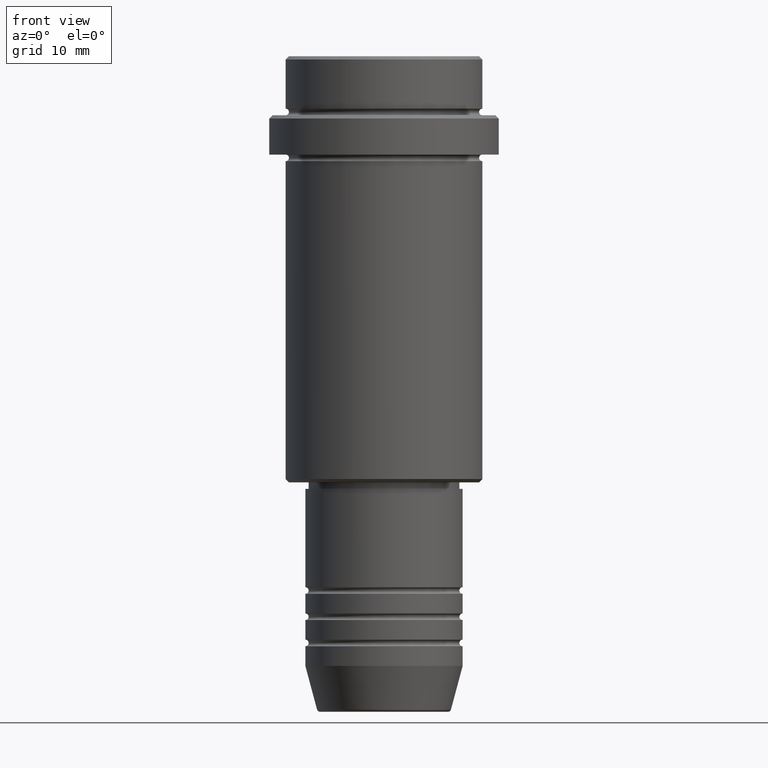
[diagram: clean part render]
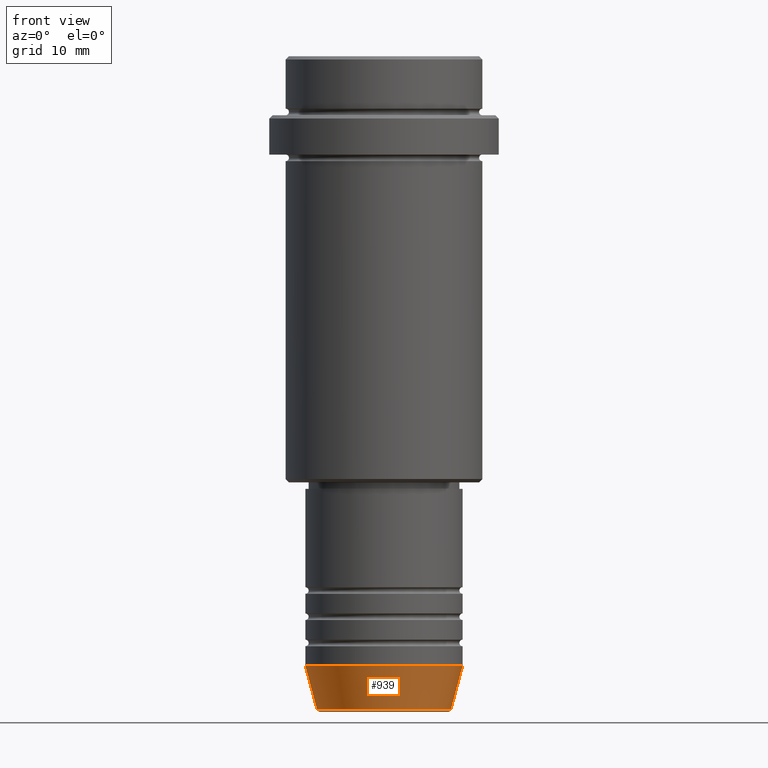
[diagram: same view with one face highlighted and labeled with its STEP entity id]
A machine part, front view. The second image highlights one B-rep face of the part: STEP entity #939.
In plain terms, the highlighted conical surface has half-angle 15 deg.
Its self-contained STEP definition (entity closure, byte-faithful):
#12 = ORIENTED_EDGE ( 'NONE', *, *, #509, .T. ) ;
#16 = CARTESIAN_POINT ( 'NONE',  ( 0.000000000000000000, 0.000000000000000000, -93.00000000000000000 ) ) ;
#82 = EDGE_CURVE ( 'NONE', #436, #792, #1010, .T. ) ;
#92 = CIRCLE ( 'NONE', #840, 10.22365507213718949 ) ;
#132 = VERTEX_POINT ( 'NONE', #1367 ) ;
#138 = DIRECTION ( 'NONE',  ( -0.000000000000000000, -0.000000000000000000, 1.000000000000000000 ) ) ;
#202 = ORIENTED_EDGE ( 'NONE', *, *, #1111, .F. ) ;
#219 = ORIENTED_EDGE ( 'NONE', *, *, #1361, .F. ) ;
#337 = EDGE_LOOP ( 'NONE', ( #202, #12, #963, #219 ) ) ;
#351 = CIRCLE ( 'NONE', #1270, 12.00000000000000000 ) ;
#436 = VERTEX_POINT ( 'NONE', #811 ) ;
#453 = CARTESIAN_POINT ( 'NONE',  ( 12.00000000000000000, 0.000000000000000000, -93.00000000000000000 ) ) ;
#509 = EDGE_CURVE ( 'NONE', #132, #436, #92, .T. ) ;
#545 = DIRECTION ( 'NONE',  ( -0.2588190451025213501, 3.169619151431772337E-17, 0.9659258262890680902 ) ) ;
#553 = VERTEX_POINT ( 'NONE', #1008 ) ;
#589 = DIRECTION ( 'NONE',  ( 1.000000000000000000, 0.000000000000000000, 0.000000000000000000 ) ) ;
#679 = CONICAL_SURFACE ( 'NONE', #1293, 12.00000000000000000, 0.2617993877991500740 ) ;
#689 = DIRECTION ( 'NONE',  ( 1.000000000000000000, 0.000000000000000000, 0.000000000000000000 ) ) ;
#767 = LINE ( 'NONE', #1175, #892 ) ;
#783 = DIRECTION ( 'NONE',  ( -0.000000000000000000, -0.000000000000000000, 1.000000000000000000 ) ) ;
#792 = VERTEX_POINT ( 'NONE', #1316 ) ;
#811 = CARTESIAN_POINT ( 'NONE',  ( 10.22365507213718949, 0.000000000000000000, -99.62940952255127058 ) ) ;
#840 = AXIS2_PLACEMENT_3D ( 'NONE', #1034, #924, #1350 ) ;
#892 = VECTOR ( 'NONE', #545, 1000.000000000000000 ) ;
#924 = DIRECTION ( 'NONE',  ( -0.000000000000000000, -0.000000000000000000, 1.000000000000000000 ) ) ;
#939 = ADVANCED_FACE ( 'NONE', ( #1343 ), #679, .T. ) ;
#963 = ORIENTED_EDGE ( 'NONE', *, *, #82, .T. ) ;
#1008 = CARTESIAN_POINT ( 'NONE',  ( -12.00000000000000000, 1.469576158976823947E-15, -93.00000000000000000 ) ) ;
#1010 = LINE ( 'NONE', #453, #1041 ) ;
#1034 = CARTESIAN_POINT ( 'NONE',  ( 0.000000000000000000, 0.000000000000000000, -99.62940952255127058 ) ) ;
#1041 = VECTOR ( 'NONE', #1097, 1000.000000000000000 ) ;
#1097 = DIRECTION ( 'NONE',  ( 0.2588190451025213501, 0.000000000000000000, 0.9659258262890680902 ) ) ;
#1111 = EDGE_CURVE ( 'NONE', #132, #553, #767, .T. ) ;
#1132 = CARTESIAN_POINT ( 'NONE',  ( 0.000000000000000000, 0.000000000000000000, -93.00000000000000000 ) ) ;
#1175 = CARTESIAN_POINT ( 'NONE',  ( -12.00000000000000000, 1.469576158976823947E-15, -93.00000000000000000 ) ) ;
#1270 = AXIS2_PLACEMENT_3D ( 'NONE', #16, #783, #689 ) ;
#1293 = AXIS2_PLACEMENT_3D ( 'NONE', #1132, #138, #589 ) ;
#1316 = CARTESIAN_POINT ( 'NONE',  ( 12.00000000000000000, 0.000000000000000000, -93.00000000000000000 ) ) ;
#1343 = FACE_OUTER_BOUND ( 'NONE', #337, .T. ) ;
#1350 = DIRECTION ( 'NONE',  ( 1.000000000000000000, 0.000000000000000000, 0.000000000000000000 ) ) ;
#1361 = EDGE_CURVE ( 'NONE', #553, #792, #351, .T. ) ;
#1367 = CARTESIAN_POINT ( 'NONE',  ( -10.22365507213718949, 1.360806402472382547E-15, -99.62940952255127058 ) ) ;